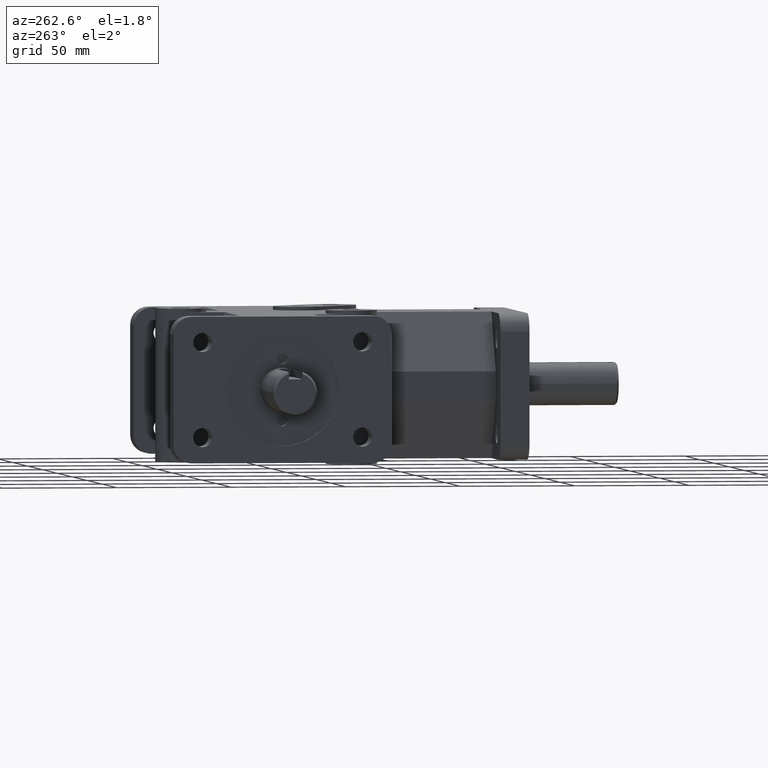
[diagram: clean part render]
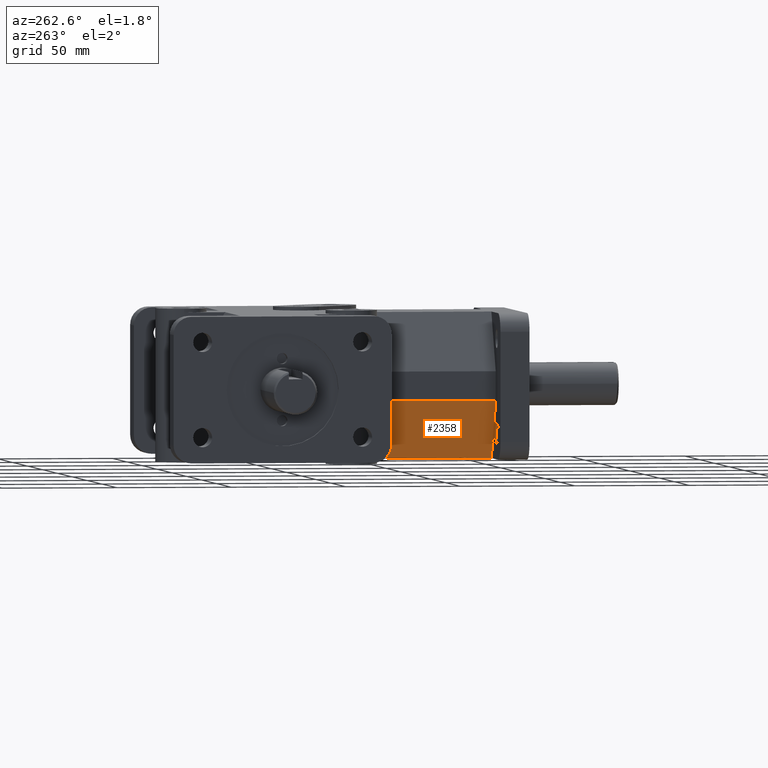
[diagram: same view with one face highlighted and labeled with its STEP entity id]
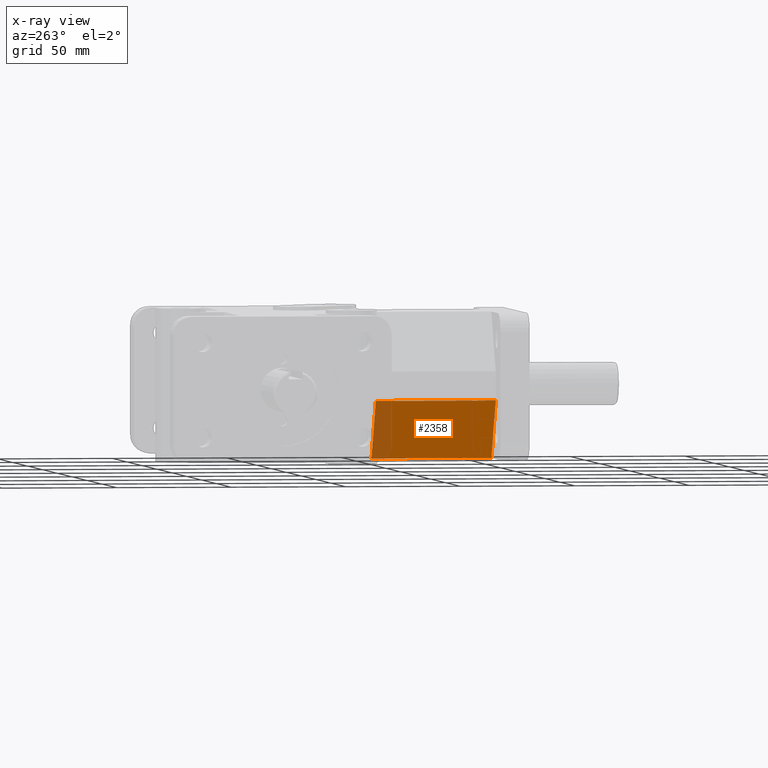
[diagram: x-ray of the same camera — body ghosted, the highlighted face saturated]
A machine part, auxiliary view. The second image highlights one B-rep face of the part: STEP entity #2358.
The next image is the same camera in x-ray: the body ghosted, the highlighted face saturated — about 15% of this face is hidden behind the body in this view.
In plain terms, the highlighted planar face has unit normal (-0.866, 0, -0.5).
Its self-contained STEP definition (entity closure, byte-faithful):
#112=PLANE('',#2607);
#239=FACE_OUTER_BOUND('',#396,.T.);
#396=EDGE_LOOP('',(#2023,#2024,#2025,#2026));
#547=LINE('',#3706,#769);
#629=LINE('',#3943,#851);
#630=LINE('',#3945,#852);
#631=LINE('',#3946,#853);
#769=VECTOR('',#2982,1.);
#851=VECTOR('',#3218,1.);
#852=VECTOR('',#3219,1.);
#853=VECTOR('',#3220,1.);
#1132=VERTEX_POINT('',#3703);
#1133=VERTEX_POINT('',#3705);
#1211=VERTEX_POINT('',#3942);
#1212=VERTEX_POINT('',#3944);
#1393=EDGE_CURVE('',#1133,#1132,#547,.T.);
#1512=EDGE_CURVE('',#1211,#1133,#629,.F.);
#1513=EDGE_CURVE('',#1132,#1212,#630,.F.);
#1514=EDGE_CURVE('',#1212,#1211,#631,.T.);
#2023=ORIENTED_EDGE('',*,*,#1512,.T.);
#2024=ORIENTED_EDGE('',*,*,#1393,.T.);
#2025=ORIENTED_EDGE('',*,*,#1513,.T.);
#2026=ORIENTED_EDGE('',*,*,#1514,.T.);
#2358=ADVANCED_FACE('',(#239),#112,.T.);
#2607=AXIS2_PLACEMENT_3D('',#3941,#3216,#3217);
#2982=DIRECTION('',(0.,-1.,0.));
#3216=DIRECTION('center_axis',(-0.866025504730542,0.,-0.499999825156179));
#3217=DIRECTION('ref_axis',(0.,1.,0.));
#3218=DIRECTION('',(-0.499999825156179,0.,0.866025504730542));
#3219=DIRECTION('',(0.499999825156179,0.,-0.866025504730542));
#3220=DIRECTION('',(0.,1.,0.));
#3703=CARTESIAN_POINT('',(-17.08531,12.7,-31.75));
#3705=CARTESIAN_POINT('',(-17.08531,65.0875,-31.75));
#3706=CARTESIAN_POINT('',(-17.08531,73.9437028726981,-31.75));
#3941=CARTESIAN_POINT('Origin',(-24.417655,73.9437028726981,-19.05));
#3942=CARTESIAN_POINT('',(-31.75,65.0875,-6.35));
#3943=CARTESIAN_POINT('',(-29.8555172304392,65.0875,-9.63134194086908));
#3944=CARTESIAN_POINT('',(-31.75,12.7,-6.35));
#3945=CARTESIAN_POINT('',(-29.4586425080037,12.7,-10.318749444871));
#3946=CARTESIAN_POINT('',(-31.75,73.9437028726981,-6.35));